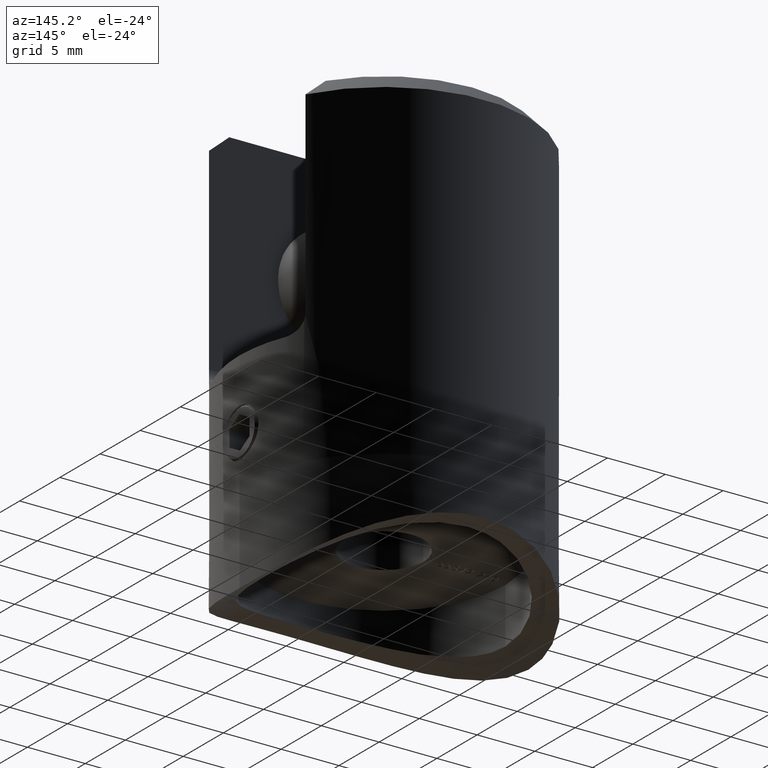
[diagram: clean part render]
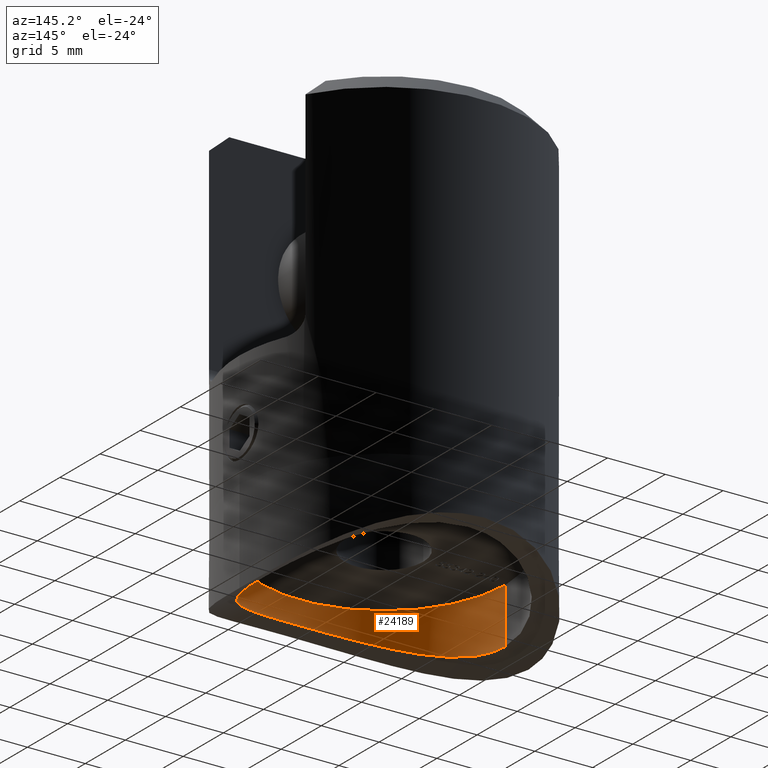
[diagram: same view with one face highlighted and labeled with its STEP entity id]
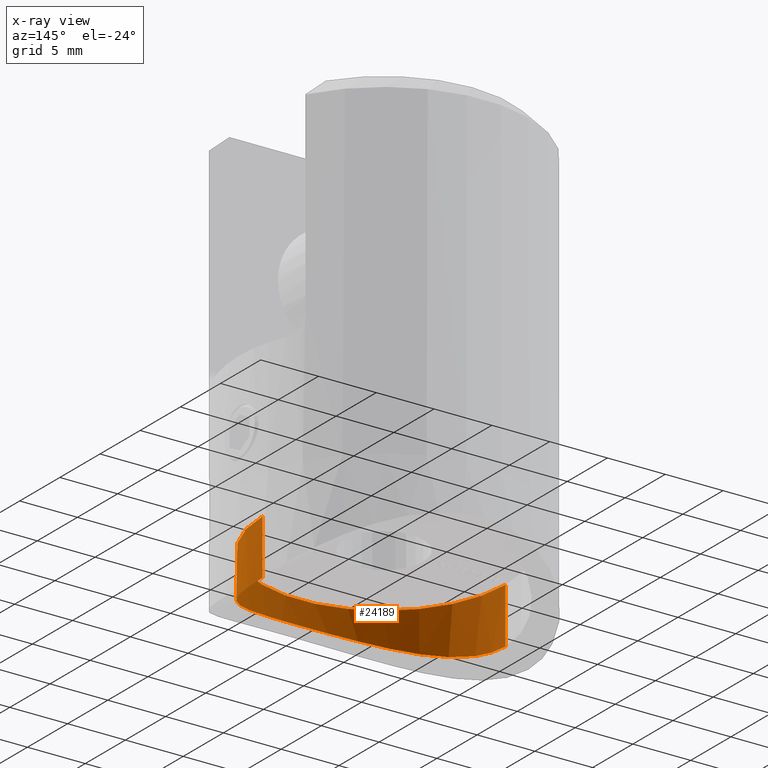
[diagram: x-ray of the same camera — body ghosted, the highlighted face saturated]
A machine part, auxiliary view. The second image highlights one B-rep face of the part: STEP entity #24189.
The next image is the same camera in x-ray: the body ghosted, the highlighted face saturated — about 0% of this face is hidden behind the body in this view.
In plain terms, the highlighted cylindrical surface (partial cylindrical patch) has radius 10.5 mm, axis along (0, 0, 1).
Its self-contained STEP definition (entity closure, byte-faithful):
#470 = CARTESIAN_POINT ( 'NONE',  ( 2.412517499260401266, -10.22499791500067623, -5.884934175086768526 ) ) ;
#577 = CARTESIAN_POINT ( 'NONE',  ( 3.418865490584087397, -9.933913976514926247, -6.024786285886087889 ) ) ;
#795 = CARTESIAN_POINT ( 'NONE',  ( 10.42936559878431879, -1.399225786341109279, -8.492131632620688819 ) ) ;
#894 = CARTESIAN_POINT ( 'NONE',  ( 2.753098602969378028, -10.13862595314736836, -5.926830441002104877 ) ) ;
#974 = CARTESIAN_POINT ( 'NONE',  ( -3.587888875913550839E-14, -10.50000000000047962, -5.749999999999764633 ) ) ;
#1095 = CARTESIAN_POINT ( 'NONE',  ( -8.912539232355104701, -5.561756799991269595, -7.713313591545969850 ) ) ;
#1810 = EDGE_CURVE ( 'NONE', #16395, #27385, #16402, .T. ) ;
#2022 = CARTESIAN_POINT ( 'NONE',  ( -10.22459551778976206, -2.414513967470158118, -8.378412207107500009 ) ) ;
#2080 = DIRECTION ( 'NONE',  ( 1.000000000000000000, 0.000000000000000000, 0.000000000000000000 ) ) ;
#3032 = CIRCLE ( 'NONE', #29876, 10.50000000000000178 ) ;
#3188 = CARTESIAN_POINT ( 'NONE',  ( -9.556678131273212529, -4.363003173267199664, -8.025632521733287561 ) ) ;
#3314 = CARTESIAN_POINT ( 'NONE',  ( 10.50000000000000355, -0.7069413317936349417, -8.532888391498524072 ) ) ;
#3434 = CARTESIAN_POINT ( 'NONE',  ( -10.50000000000000888, -0.6957013869262658190, -8.532888391498524072 ) ) ;
#3608 = CARTESIAN_POINT ( 'NONE',  ( -9.088938526569199539, -5.268464263219208910, -7.796327998346883170 ) ) ;
#4909 = EDGE_LOOP ( 'NONE', ( #6171, #28388, #8758, #21426, #6730 ) ) ;
#5425 = CARTESIAN_POINT ( 'NONE',  ( 1.390229227872605167, -10.43075044653987682, -5.784551309678581887 ) ) ;
#5704 = CARTESIAN_POINT ( 'NONE',  ( -8.342518854530242223, -6.412359647109571625, -7.455995348731365269 ) ) ;
#5737 = CARTESIAN_POINT ( 'NONE',  ( -3.587888875913550839E-14, -10.50000000000047962, -5.749999999999764633 ) ) ;
#5820 = CARTESIAN_POINT ( 'NONE',  ( -3.750631428405013512, -9.813370584437224764, -6.081886018705383812 ) ) ;
#6035 = VERTEX_POINT ( 'NONE', #9014 ) ;
#6143 = CARTESIAN_POINT ( 'NONE',  ( -1.745248447013746818, -10.35974293304004057, -5.819201083995970691 ) ) ;
#6171 = ORIENTED_EDGE ( 'NONE', *, *, #1810, .T. ) ;
#6730 = ORIENTED_EDGE ( 'NONE', *, *, #28326, .F. ) ;
#7198 = LINE ( 'NONE', #29865, #17040 ) ;
#8073 = CARTESIAN_POINT ( 'NONE',  ( 5.288126656227684741, -9.096792665496083785, -6.411663043137133755 ) ) ;
#8270 = CARTESIAN_POINT ( 'NONE',  ( -7.201106887004877777, -7.649027169433201045, -7.008872628639035263 ) ) ;
#8419 = CARTESIAN_POINT ( 'NONE',  ( -10.50000000000000178, 1.285879139104721028E-15, -3.750000000000000888 ) ) ;
#8758 = ORIENTED_EDGE ( 'NONE', *, *, #17041, .T. ) ;
#9014 = CARTESIAN_POINT ( 'NONE',  ( -10.50000000000000178, 1.285915292023303837E-15, -8.532888391498525849 ) ) ;
#9299 = CARTESIAN_POINT ( 'NONE',  ( 10.50000000000000178, -3.715873325435201510E-16, -8.532888391498520519 ) ) ;
#10637 = CARTESIAN_POINT ( 'NONE',  ( 9.417717499510800394, -4.693273418099735750, -7.954330180287293217 ) ) ;
#10813 = CARTESIAN_POINT ( 'NONE',  ( -9.819225372594829082, -3.734796738362772039, -8.160519048163559219 ) ) ;
#10923 = FACE_OUTER_BOUND ( 'NONE', #4909, .T. ) ;
#10925 = CARTESIAN_POINT ( 'NONE',  ( -4.706560119024041811, -9.411493250433805358, -6.268850108415499278 ) ) ;
#10954 = CARTESIAN_POINT ( 'NONE',  ( 10.50000000000000178, -3.715873325435201510E-16, -8.532888391498520519 ) ) ;
#11121 = CARTESIAN_POINT ( 'NONE',  ( -3.422160106888875397, -9.932713577203772459, -6.025354697548264582 ) ) ;
#11368 = DIRECTION ( 'NONE',  ( 1.000000000000000000, 0.000000000000000000, 0.000000000000000000 ) ) ;
#12016 = DIRECTION ( 'NONE',  ( -0.000000000000000000, -0.000000000000000000, 1.000000000000000000 ) ) ;
#12084 = CARTESIAN_POINT ( 'NONE',  ( 10.50000000000000178, 0.000000000000000000, -3.750000000000000888 ) ) ;
#12156 = CARTESIAN_POINT ( 'NONE',  ( -3.587888875913550839E-14, -10.50000000000047962, -5.749999999999764633 ) ) ;
#13025 = CARTESIAN_POINT ( 'NONE',  ( 7.663187098496099914, -7.186030148956618291, -7.181838179710406500 ) ) ;
#13121 = CARTESIAN_POINT ( 'NONE',  ( 6.937082147276826483, -7.889354693913287697, -6.915206004054506472 ) ) ;
#13317 = CARTESIAN_POINT ( 'NONE',  ( -10.13820535048457927, -2.754200611624762374, -8.330923692409296422 ) ) ;
#13405 = CARTESIAN_POINT ( 'NONE',  ( -6.951258213311577450, -7.876925322187200429, -6.920109373046482659 ) ) ;
#13430 = CARTESIAN_POINT ( 'NONE',  ( 7.186838835622332944, -7.662428685414385043, -7.003722006085877361 ) ) ;
#13625 = CARTESIAN_POINT ( 'NONE',  ( -5.305736119338940959, -9.086365728040236789, -6.416276384699678204 ) ) ;
#14103 = CARTESIAN_POINT ( 'NONE',  ( -10.50000000000000178, 1.285879139104721028E-15, 5.749999999999997335 ) ) ;
#14334 = VERTEX_POINT ( 'NONE', #12084 ) ;
#14338 = DIRECTION ( 'NONE',  ( -0.000000000000000000, -0.000000000000000000, 1.000000000000000000 ) ) ;
#14916 = EDGE_CURVE ( 'NONE', #27385, #6035, #20529, .T. ) ;
#15461 = VECTOR ( 'NONE', #23919, 1000.000000000000000 ) ;
#15668 = CARTESIAN_POINT ( 'NONE',  ( 10.13854715175063781, -2.753351409924690074, -8.331102570949457942 ) ) ;
#15764 = AXIS2_PLACEMENT_3D ( 'NONE', #22459, #12016, #2080 ) ;
#15874 = CARTESIAN_POINT ( 'NONE',  ( 6.413493176705845400, -8.320584803773471094, -6.741507120757669114 ) ) ;
#15946 = CARTESIAN_POINT ( 'NONE',  ( -9.935728384908699695, -3.413228705930483997, -8.222092702658974517 ) ) ;
#15976 = CARTESIAN_POINT ( 'NONE',  ( 3.742859277745370861, -9.816218903212718061, -6.080538050242753734 ) ) ;
#16066 = CARTESIAN_POINT ( 'NONE',  ( -0.7037295379170501741, -10.48225098542540756, -5.758807201702744294 ) ) ;
#16160 = CARTESIAN_POINT ( 'NONE',  ( -7.914573942462319600, -6.932802280209751977, -7.276222420060272533 ) ) ;
#16395 = VERTEX_POINT ( 'NONE', #9299 ) ;
#16402 = B_SPLINE_CURVE_WITH_KNOTS ( 'NONE', 3,
 ( #10954, #3314, #795, #30938, #15668, #28184, #25558, #10637, #23151, #18400, #25977, #31045, #13025, #13430, #13121, #15874, #20636, #8073, #20861, #15976, #577, #894, #470, #5425, #20948, #5737 ),
 .UNSPECIFIED., .F., .F.,
 ( 4, 2, 2, 2, 2, 2, 2, 2, 2, 2, 2, 2, 4 ),
 ( 6.519774569210817150E-19, 0.002087366305171160265, 0.003131049457756739530, 0.004174732610342317927, 0.006262098915513478192, 0.007305782068099059626, 0.008349465220684642794, 0.009393148373270225962, 0.01043683152585580913, 0.01252419783102697547, 0.01356788098361255863, 0.01461156413619814180, 0.01669893044136930987 ),
 .UNSPECIFIED. ) ;
#17040 = VECTOR ( 'NONE', #14338, 1000.000000000000000 ) ;
#17041 = EDGE_CURVE ( 'NONE', #6035, #23440, #30419, .T. ) ;
#18400 = CARTESIAN_POINT ( 'NONE',  ( 8.524333888885884392, -6.140194669063181898, -7.538166902416747028 ) ) ;
#20529 = B_SPLINE_CURVE_WITH_KNOTS ( 'NONE', 3,
 ( #974, #23434, #16066, #31110, #6143, #28474, #28797, #11121, #5820, #10925, #13625, #21134, #31217, #13405, #8270, #16160, #5704, #1095, #3608, #23756, #3188, #10813, #15946, #13317, #2022, #30400, #3434, #29904 ),
 .UNSPECIFIED., .F., .F.,
 ( 4, 2, 2, 2, 2, 2, 2, 2, 2, 2, 2, 2, 2, 4 ),
 ( 0.01669893044136930987, 0.01774177036149361675, 0.01878461028161792362, 0.01982745020174223050, 0.02087029012186653737, 0.02295596996211515459, 0.02399880988223945799, 0.02504164980236376487, 0.02712732964261237861, 0.02817016956273667855, 0.02921300948286098195, 0.03025584940298528536, 0.03129868932310959223, 0.03338436916335819904 ),
 .UNSPECIFIED. ) ;
#20636 = CARTESIAN_POINT ( 'NONE',  ( 6.138058990945038040, -8.525884816634055952, -6.655884499560840162 ) ) ;
#20861 = CARTESIAN_POINT ( 'NONE',  ( 4.689865390473471507, -9.419329017208182719, -6.265249259400771820 ) ) ;
#20948 = CARTESIAN_POINT ( 'NONE',  ( 0.6997298848821599249, -10.50000000000001243, -5.750000000000000000 ) ) ;
#21134 = CARTESIAN_POINT ( 'NONE',  ( -6.151901383995695305, -8.515857492908887494, -6.660094389549477079 ) ) ;
#21154 = DIRECTION ( 'NONE',  ( -0.000000000000000000, -0.000000000000000000, 1.000000000000000000 ) ) ;
#21426 = ORIENTED_EDGE ( 'NONE', *, *, #23904, .T. ) ;
#22459 = CARTESIAN_POINT ( 'NONE',  ( 0.000000000000000000, 0.000000000000000000, 5.749999999999997335 ) ) ;
#23151 = CARTESIAN_POINT ( 'NONE',  ( 9.094938754531714409, -5.291230891212171272, -7.795464795984604400 ) ) ;
#23434 = CARTESIAN_POINT ( 'NONE',  ( -0.3495822728630163523, -10.49999999999999822, -5.750000000000002665 ) ) ;
#23440 = VERTEX_POINT ( 'NONE', #8419 ) ;
#23493 = CYLINDRICAL_SURFACE ( 'NONE', #15764, 10.50000000000000178 ) ;
#23756 = CARTESIAN_POINT ( 'NONE',  ( -9.410631364284892442, -4.669639874563055848, -7.952316667230136638 ) ) ;
#23904 = EDGE_CURVE ( 'NONE', #23440, #14334, #3032, .T. ) ;
#23919 = DIRECTION ( 'NONE',  ( -0.000000000000000000, -0.000000000000000000, 1.000000000000000000 ) ) ;
#24189 = ADVANCED_FACE ( 'NONE', ( #10923 ), #23493, .F. ) ;
#25558 = CARTESIAN_POINT ( 'NONE',  ( 9.815526900510572972, -3.744727791811003570, -8.158575084220267115 ) ) ;
#25977 = CARTESIAN_POINT ( 'NONE',  ( 8.319908598844852676, -6.414324299539138963, -7.449402792906464121 ) ) ;
#26388 = CARTESIAN_POINT ( 'NONE',  ( 0.000000000000000000, 0.000000000000000000, -3.750000000000000888 ) ) ;
#27385 = VERTEX_POINT ( 'NONE', #12156 ) ;
#28184 = CARTESIAN_POINT ( 'NONE',  ( 9.934010876257474365, -3.418553823651660384, -8.221174416633216353 ) ) ;
#28326 = EDGE_CURVE ( 'NONE', #16395, #14334, #7198, .T. ) ;
#28388 = ORIENTED_EDGE ( 'NONE', *, *, #14916, .T. ) ;
#28474 = CARTESIAN_POINT ( 'NONE',  ( -2.424741180612124847, -10.22207395725156509, -5.886353943881305284 ) ) ;
#28797 = CARTESIAN_POINT ( 'NONE',  ( -2.760101061603512207, -10.13665728599349691, -5.927778353363021502 ) ) ;
#29865 = CARTESIAN_POINT ( 'NONE',  ( 10.50000000000000178, 0.000000000000000000, 5.749999999999997335 ) ) ;
#29876 = AXIS2_PLACEMENT_3D ( 'NONE', #26388, #21154, #11368 ) ;
#29904 = CARTESIAN_POINT ( 'NONE',  ( -10.50000000000000178, 1.285915292023303837E-15, -8.532888391498525849 ) ) ;
#30400 = CARTESIAN_POINT ( 'NONE',  ( -10.43154522445011878, -1.386286058615518346, -8.493354290762022529 ) ) ;
#30419 = LINE ( 'NONE', #14103, #15461 ) ;
#30938 = CARTESIAN_POINT ( 'NONE',  ( 10.22380525423628939, -2.417370683618345506, -8.377979404798130858 ) ) ;
#31045 = CARTESIAN_POINT ( 'NONE',  ( 7.889777626242896247, -6.936558535846709894, -7.271443662329450497 ) ) ;
#31110 = CARTESIAN_POINT ( 'NONE',  ( -1.401116372415368128, -10.41199759387882473, -5.793470029608069005 ) ) ;
#31217 = CARTESIAN_POINT ( 'NONE',  ( -6.426308287712423351, -8.310746360629966745, -6.745568034039394867 ) ) ;